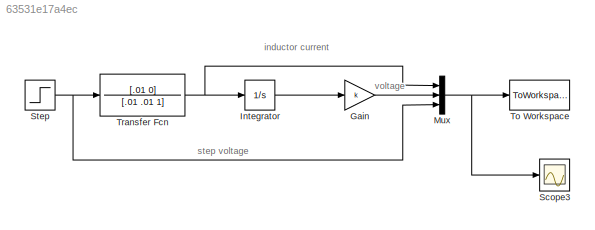
MODEL slx_63531e17a4ec
KIND model
BLOCK [Gain] Gain
  Gain = k
  OutDataTypeStr = Inherit: Inherit via internal rule
  ParamDataTypeStr = Inherit: Inherit via internal rule
  SaturateOnIntegerOverflow = off
BLOCK [Integrator] Integrator
  Ports = [1, 1]
BLOCK [Mux] Mux
  DisplayOption = bar
  Inputs = 3
  Ports = [3, 1]
BLOCK [Scope] Scope3
  Floating = off
  LegendLocations = 0.89558     0.86523     0.07636    0.070949
  NumInputPorts = 1
  Ports = [1]
  SaveName = ScopeData3
  ShowLegends = on
BLOCK [Step] Step
  After = 10
  SampleTime = 0
BLOCK [ToWorkspace] To Workspace
  FixptAsFi = on
  MaxDataPoints = inf
  Ports = [1]
  SampleTime = -1
  Save2DSignal = 3-D array (concatenate along third dimension)
  SaveFormat = Timeseries
  VariableName = simout
BLOCK [TransferFcn] Transfer Fcn
  Denominator = [.01 .01 1]
  Numerator = [.01 0]
ANNOTATION (root): inductor current
ANNOTATION (root): step voltage
ANNOTATION (root): voltage
LINE Gain:1 -> Mux:2
LINE Integrator:1 -> Gain:1
NET Mux:1 -> Scope3:1, To Workspace:1
NET Step:1 -> Mux:3, Transfer Fcn:1
NET Transfer Fcn:1 -> Integrator:1, Mux:1
note: NET lines group one-source signal fan-out (src -> all destinations, sorted); 1:1 wires keep LINE
